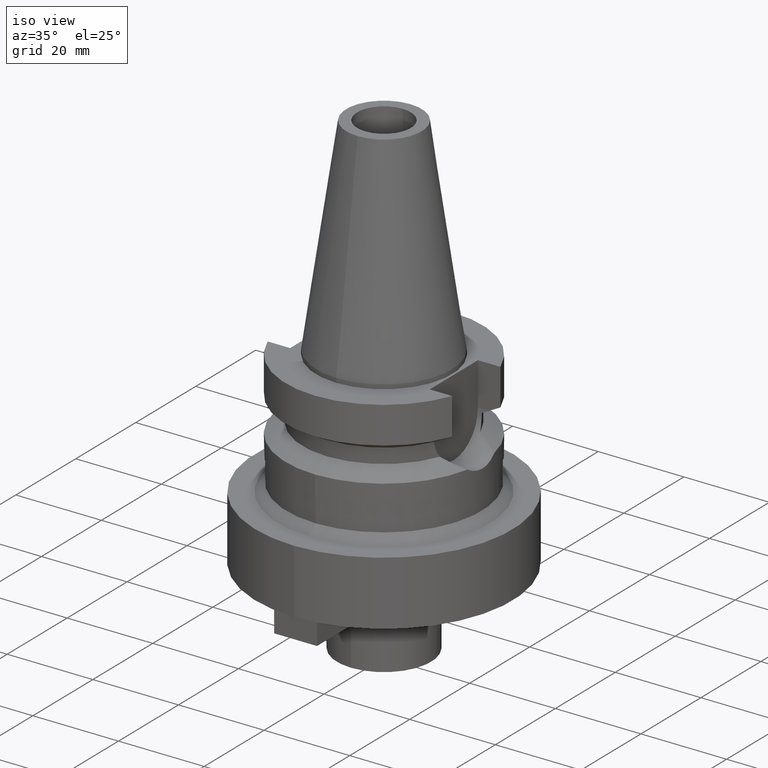
[diagram: clean part render]
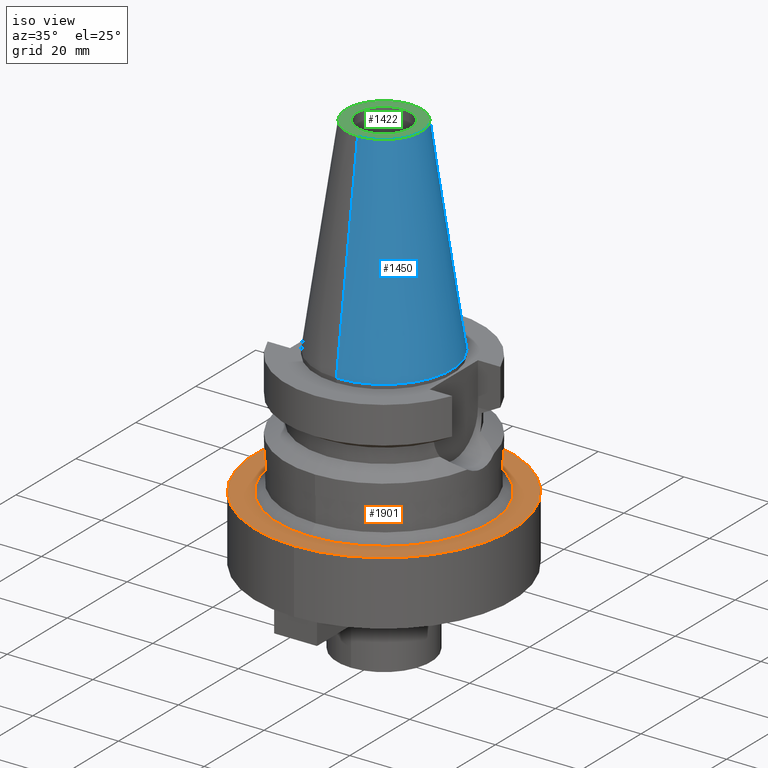
[diagram: same view with three faces highlighted in distinct colors, each labeled with its STEP entity id]
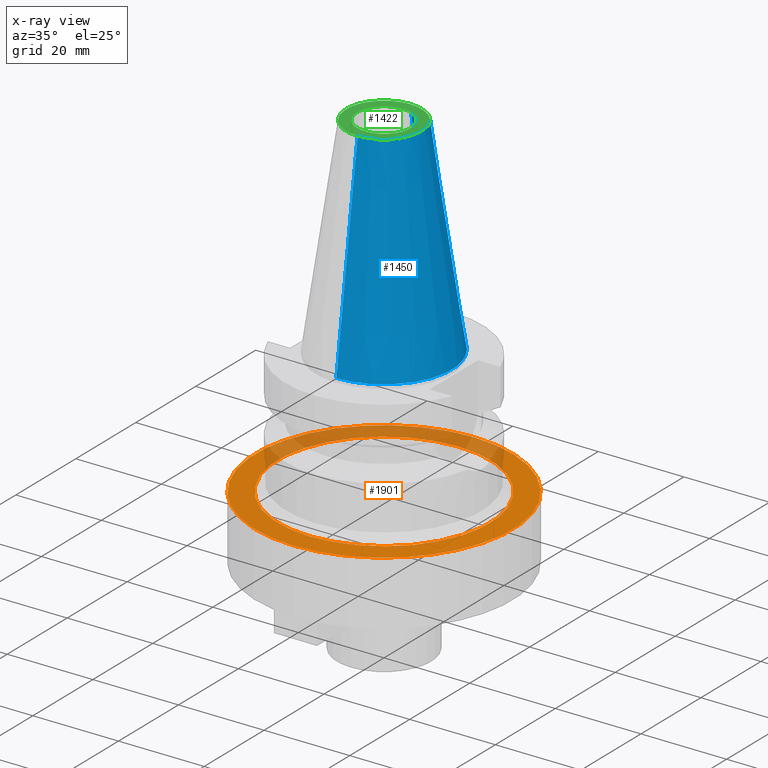
[diagram: x-ray of the same camera — body ghosted, the three highlighted faces saturated]
A machine part, iso view with three faces highlighted in distinct colors.
The next image is the same camera in x-ray (body ghosted, the three faces saturated) — at least one of them is partly hidden behind the body in this view.
Their STEP definitions:

[orange] entity #1901 — the highlighted planar face has unit normal (0, 0, -1).
#693=CARTESIAN_POINT('',(0.E0,0.E0,-3.E1));
#694=DIRECTION('',(0.E0,0.E0,-1.E0));
#695=DIRECTION('',(0.E0,-1.E0,0.E0));
#696=AXIS2_PLACEMENT_3D('',#693,#694,#695);
#701=CARTESIAN_POINT('',(0.E0,0.E0,-3.E1));
#702=DIRECTION('',(0.E0,0.E0,-1.E0));
#703=DIRECTION('',(0.E0,1.E0,0.E0));
#704=AXIS2_PLACEMENT_3D('',#701,#702,#703);
#709=CARTESIAN_POINT('',(0.E0,0.E0,-3.E1));
#710=DIRECTION('',(0.E0,0.E0,1.E0));
#711=DIRECTION('',(0.E0,-1.E0,0.E0));
#712=AXIS2_PLACEMENT_3D('',#709,#710,#711);
#717=CARTESIAN_POINT('',(0.E0,0.E0,-3.E1));
#718=DIRECTION('',(0.E0,0.E0,1.E0));
#719=DIRECTION('',(0.E0,1.E0,0.E0));
#720=AXIS2_PLACEMENT_3D('',#717,#718,#719);
#1289=CARTESIAN_POINT('',(0.E0,3.E1,-3.E1));
#1290=VERTEX_POINT('',#1289);
#1291=CARTESIAN_POINT('',(0.E0,-3.E1,-3.E1));
#1292=VERTEX_POINT('',#1291);
#1293=CARTESIAN_POINT('',(0.E0,-2.48E1,-3.E1));
#1294=CARTESIAN_POINT('',(0.E0,2.48E1,-3.E1));
#1295=VERTEX_POINT('',#1293);
#1296=VERTEX_POINT('',#1294);
#1886=CARTESIAN_POINT('',(0.E0,0.E0,-3.E1));
#1887=DIRECTION('',(0.E0,0.E0,-1.E0));
#1888=DIRECTION('',(0.E0,-1.E0,0.E0));
#1889=AXIS2_PLACEMENT_3D('',#1886,#1887,#1888);
#1890=PLANE('',#1889);
#1892=ORIENTED_EDGE('',*,*,#1891,.T.);
#1894=ORIENTED_EDGE('',*,*,#1893,.T.);
#1895=EDGE_LOOP('',(#1892,#1894));
#1896=FACE_OUTER_BOUND('',#1895,.F.);
#1897=ORIENTED_EDGE('',*,*,#1865,.T.);
#1898=ORIENTED_EDGE('',*,*,#1881,.T.);
#1899=EDGE_LOOP('',(#1897,#1898));
#1900=FACE_BOUND('',#1899,.F.);
#697=CIRCLE('',#696,3.E1);
#705=CIRCLE('',#704,3.E1);
#713=CIRCLE('',#712,2.48E1);
#721=CIRCLE('',#720,2.48E1);
#1865=EDGE_CURVE('',#1295,#1296,#713,.T.);
#1881=EDGE_CURVE('',#1296,#1295,#721,.T.);
#1891=EDGE_CURVE('',#1292,#1290,#697,.T.);
#1893=EDGE_CURVE('',#1290,#1292,#705,.T.);
#1901=ADVANCED_FACE('',(#1896,#1900),#1890,.F.);

[blue] entity #1450 — the highlighted conical surface has half-angle 8.297 deg.
#26=CARTESIAN_POINT('',(0.E0,0.E0,4.84E1));
#27=DIRECTION('',(0.E0,0.E0,-1.E0));
#28=DIRECTION('',(0.E0,1.E0,0.E0));
#29=AXIS2_PLACEMENT_3D('',#26,#27,#28);
#50=DIRECTION('',(0.E0,-1.443043893540E-1,-9.895333461856E-1));
#51=VECTOR('',#50,4.891194438931E1);
#52=CARTESIAN_POINT('',(0.E0,-8.816791732783E0,4.84E1));
#53=LINE('',#52,#51);
#65=DIRECTION('',(0.E0,1.443043893540E-1,-9.895333461856E-1));
#66=VECTOR('',#65,4.891194438931E1);
#67=CARTESIAN_POINT('',(0.E0,8.816791732783E0,4.84E1));
#68=LINE('',#67,#66);
#72=CARTESIAN_POINT('',(0.E0,0.E0,-3.410605131648E-13));
#73=DIRECTION('',(0.E0,0.E0,-1.E0));
#74=DIRECTION('',(0.E0,1.E0,0.E0));
#75=AXIS2_PLACEMENT_3D('',#72,#73,#74);
#1217=CARTESIAN_POINT('',(0.E0,-8.816791732783E0,4.84E1));
#1218=CARTESIAN_POINT('',(0.E0,8.816791732783E0,4.84E1));
#1219=VERTEX_POINT('',#1217);
#1220=VERTEX_POINT('',#1218);
#1385=CARTESIAN_POINT('',(0.E0,1.5875E1,-1.563194018672E-13));
#1386=VERTEX_POINT('',#1385);
#1387=CARTESIAN_POINT('',(0.E0,-1.5875E1,-1.563194018672E-13));
#1388=VERTEX_POINT('',#1387);
#1438=CARTESIAN_POINT('',(0.E0,0.E0,2.42E1));
#1439=DIRECTION('',(0.E0,0.E0,-1.E0));
#1440=DIRECTION('',(0.E0,-1.E0,0.E0));
#1441=AXIS2_PLACEMENT_3D('',#1438,#1439,#1440);
#1442=CONICAL_SURFACE('',#1441,1.234589586639E1,8.297E0);
#1443=ORIENTED_EDGE('',*,*,#1428,.T.);
#1445=ORIENTED_EDGE('',*,*,#1444,.T.);
#1446=ORIENTED_EDGE('',*,*,#1431,.F.);
#1447=ORIENTED_EDGE('',*,*,#1412,.F.);
#1448=EDGE_LOOP('',(#1443,#1445,#1446,#1447));
#1449=FACE_OUTER_BOUND('',#1448,.F.);
#30=CIRCLE('',#29,8.816791732783E0);
#76=CIRCLE('',#75,1.5875E1);
#1412=EDGE_CURVE('',#1220,#1219,#30,.T.);
#1428=EDGE_CURVE('',#1220,#1386,#68,.T.);
#1431=EDGE_CURVE('',#1219,#1388,#53,.T.);
#1444=EDGE_CURVE('',#1386,#1388,#76,.T.);
#1450=ADVANCED_FACE('',(#1449),#1442,.T.);

[green] entity #1422 — the highlighted planar face has unit normal (0, 0, -1).
#17=CARTESIAN_POINT('',(0.E0,0.E0,4.84E1));
#18=DIRECTION('',(0.E0,0.E0,-1.E0));
#19=DIRECTION('',(0.E0,-1.E0,0.E0));
#20=AXIS2_PLACEMENT_3D('',#17,#18,#19);
#26=CARTESIAN_POINT('',(0.E0,0.E0,4.84E1));
#27=DIRECTION('',(0.E0,0.E0,-1.E0));
#28=DIRECTION('',(0.E0,1.E0,0.E0));
#29=AXIS2_PLACEMENT_3D('',#26,#27,#28);
#34=CARTESIAN_POINT('',(0.E0,0.E0,4.84E1));
#35=DIRECTION('',(0.E0,0.E0,1.E0));
#36=DIRECTION('',(0.E0,-1.E0,0.E0));
#37=AXIS2_PLACEMENT_3D('',#34,#35,#36);
#42=CARTESIAN_POINT('',(0.E0,0.E0,4.84E1));
#43=DIRECTION('',(0.E0,0.E0,1.E0));
#44=DIRECTION('',(0.E0,1.E0,0.E0));
#45=AXIS2_PLACEMENT_3D('',#42,#43,#44);
#1217=CARTESIAN_POINT('',(0.E0,-8.816791732783E0,4.84E1));
#1218=CARTESIAN_POINT('',(0.E0,8.816791732783E0,4.84E1));
#1219=VERTEX_POINT('',#1217);
#1220=VERTEX_POINT('',#1218);
#1221=CARTESIAN_POINT('',(0.E0,-6.25E0,4.84E1));
#1222=CARTESIAN_POINT('',(0.E0,6.25E0,4.84E1));
#1223=VERTEX_POINT('',#1221);
#1224=VERTEX_POINT('',#1222);
#1405=CARTESIAN_POINT('',(0.E0,0.E0,4.84E1));
#1406=DIRECTION('',(0.E0,0.E0,-1.E0));
#1407=DIRECTION('',(0.E0,-1.E0,0.E0));
#1408=AXIS2_PLACEMENT_3D('',#1405,#1406,#1407);
#1409=PLANE('',#1408);
#1411=ORIENTED_EDGE('',*,*,#1410,.T.);
#1413=ORIENTED_EDGE('',*,*,#1412,.T.);
#1414=EDGE_LOOP('',(#1411,#1413));
#1415=FACE_OUTER_BOUND('',#1414,.F.);
#1417=ORIENTED_EDGE('',*,*,#1416,.T.);
#1419=ORIENTED_EDGE('',*,*,#1418,.T.);
#1420=EDGE_LOOP('',(#1417,#1419));
#1421=FACE_BOUND('',#1420,.F.);
#21=CIRCLE('',#20,8.816791732783E0);
#30=CIRCLE('',#29,8.816791732783E0);
#38=CIRCLE('',#37,6.25E0);
#46=CIRCLE('',#45,6.25E0);
#1410=EDGE_CURVE('',#1219,#1220,#21,.T.);
#1412=EDGE_CURVE('',#1220,#1219,#30,.T.);
#1416=EDGE_CURVE('',#1223,#1224,#38,.T.);
#1418=EDGE_CURVE('',#1224,#1223,#46,.T.);
#1422=ADVANCED_FACE('',(#1415,#1421),#1409,.F.);